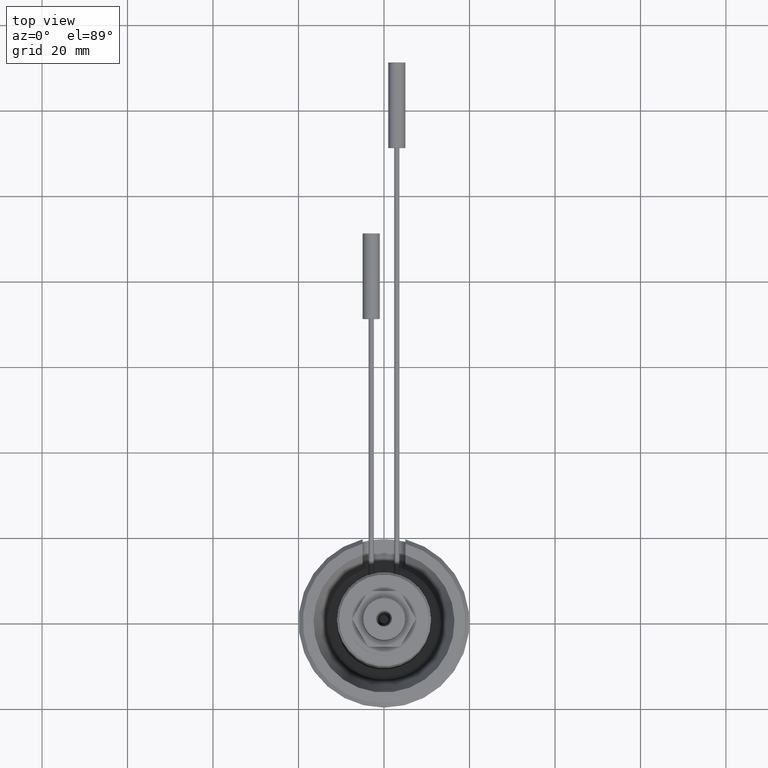
[diagram: clean part render]
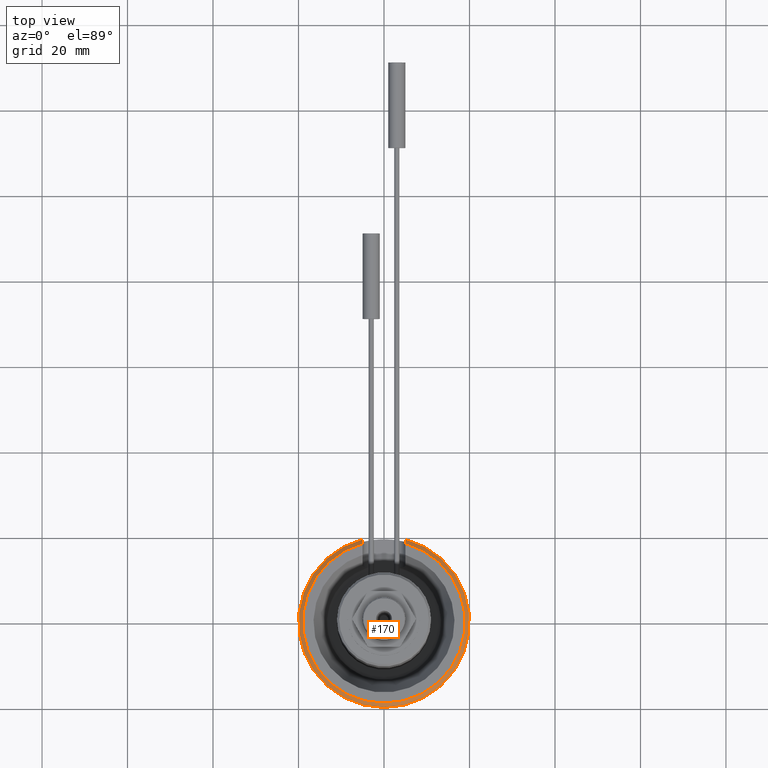
[diagram: same view with one face highlighted and labeled with its STEP entity id]
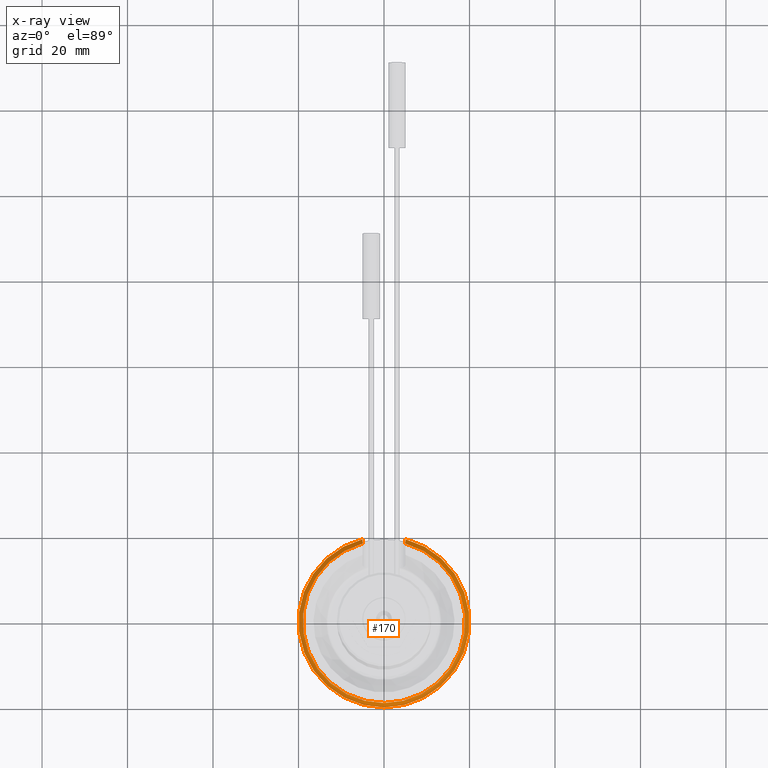
[diagram: x-ray of the same camera — body ghosted, the highlighted face saturated]
A machine part, top view. The second image highlights one B-rep face of the part: STEP entity #170.
The next image is the same camera in x-ray: the body ghosted, the highlighted face saturated — about 0% of this face is hidden behind the body in this view.
In plain terms, the highlighted conical surface has half-angle 45 deg.
Its self-contained STEP definition (entity closure, byte-faithful):
#42=CONICAL_SURFACE('',#1053,19.,44.9999999999999);
#68=B_SPLINE_CURVE_WITH_KNOTS('',3,(#1790,#1791,#1792,#1793),
 .UNSPECIFIED.,.F.,.F.,(4,4),(0.,1.),.UNSPECIFIED.);
#69=B_SPLINE_CURVE_WITH_KNOTS('',3,(#1796,#1797,#1798,#1799),
 .UNSPECIFIED.,.F.,.F.,(4,4),(0.,1.),.UNSPECIFIED.);
#111=FACE_OUTER_BOUND('',#435,.T.);
#170=ADVANCED_FACE('',(#111),#42,.T.);
#435=EDGE_LOOP('',(#630,#631,#632,#633));
#630=ORIENTED_EDGE('',*,*,#889,.F.);
#631=ORIENTED_EDGE('',*,*,#883,.F.);
#632=ORIENTED_EDGE('',*,*,#887,.F.);
#633=ORIENTED_EDGE('',*,*,#891,.F.);
#770=VERTEX_POINT('',#1782);
#771=VERTEX_POINT('',#1784);
#772=VERTEX_POINT('',#1789);
#773=VERTEX_POINT('',#1800);
#883=EDGE_CURVE('',#770,#771,#944,.T.);
#887=EDGE_CURVE('',#772,#770,#68,.T.);
#889=EDGE_CURVE('',#771,#773,#69,.T.);
#891=EDGE_CURVE('',#773,#772,#945,.T.);
#944=CIRCLE('',#1033,20.);
#945=CIRCLE('',#1037,19.);
#1033=AXIS2_PLACEMENT_3D('',#1783,#1271,#1272);
#1037=AXIS2_PLACEMENT_3D('',#1803,#1284,#1285);
#1053=AXIS2_PLACEMENT_3D('',#1825,#1316,#1317);
#1271=DIRECTION('',(0.,0.,-1.));
#1272=DIRECTION('',(-1.,0.,0.));
#1284=DIRECTION('',(0.,0.,1.));
#1285=DIRECTION('',(-1.,0.,0.));
#1316=DIRECTION('',(0.,0.,-1.));
#1317=DIRECTION('',(-1.,0.,0.));
#1782=CARTESIAN_POINT('',(5.,19.3649167310371,24.));
#1783=CARTESIAN_POINT('',(0.,0.,24.));
#1784=CARTESIAN_POINT('',(-5.,19.3649167310371,24.));
#1789=CARTESIAN_POINT('',(5.,18.3303027798234,25.));
#1790=CARTESIAN_POINT('',(5.,18.3303027798234,25.));
#1791=CARTESIAN_POINT('',(5.,18.6754829325216,24.6669864888135));
#1792=CARTESIAN_POINT('',(5.,19.0203385698962,24.3336363698914));
#1793=CARTESIAN_POINT('',(5.,19.3649167310371,24.));
#1796=CARTESIAN_POINT('',(-5.,19.3649167310371,24.));
#1797=CARTESIAN_POINT('',(-5.,19.0203385698962,24.3336363698914));
#1798=CARTESIAN_POINT('',(-5.,18.6754829325216,24.6669864888135));
#1799=CARTESIAN_POINT('',(-5.,18.3303027798234,25.));
#1800=CARTESIAN_POINT('',(-5.,18.3303027798234,25.));
#1803=CARTESIAN_POINT('',(0.,0.,25.));
#1825=CARTESIAN_POINT('',(0.,0.,25.));